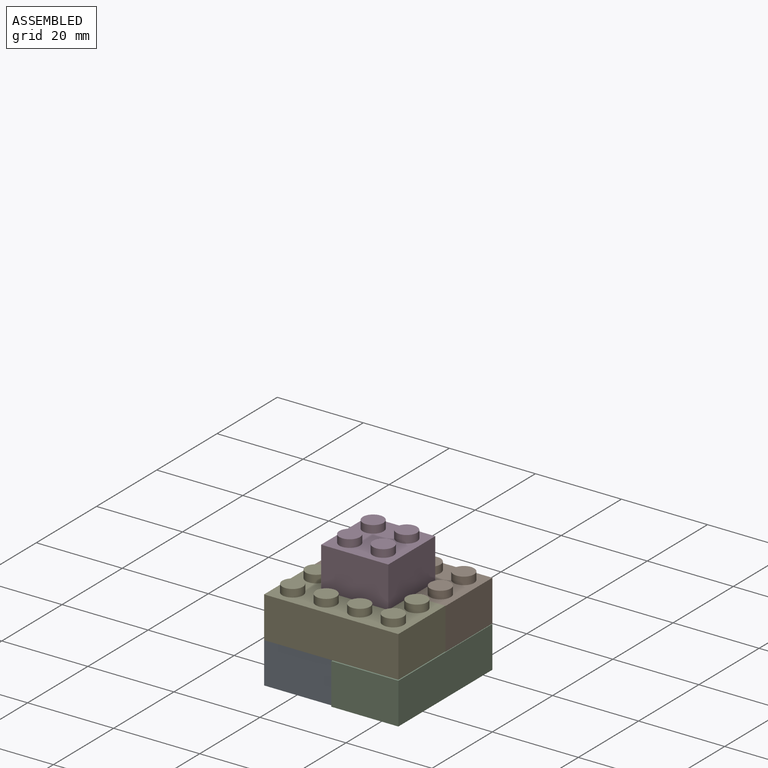
[diagram: assembled view]
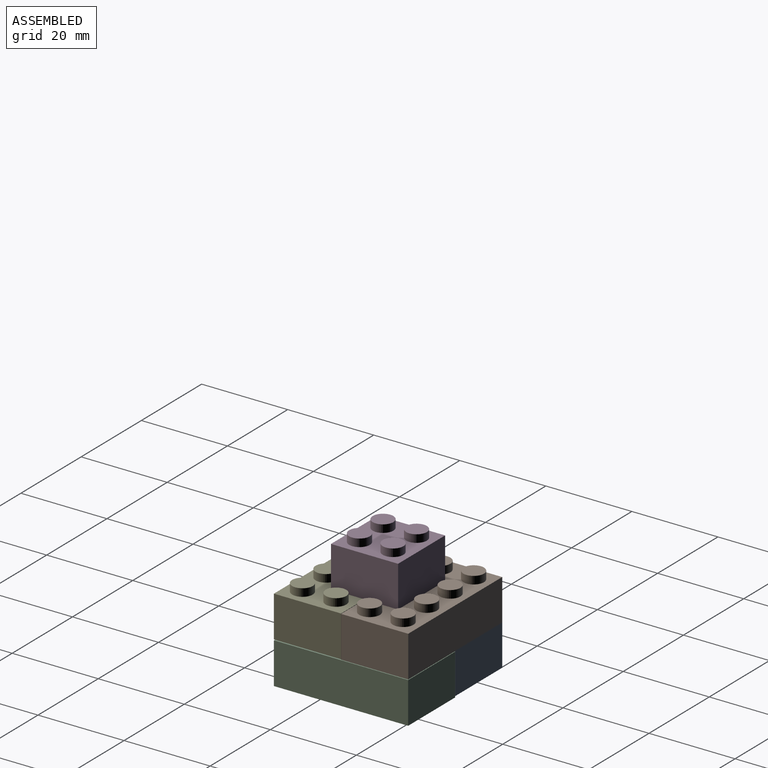
[diagram: assembled view, second angle]
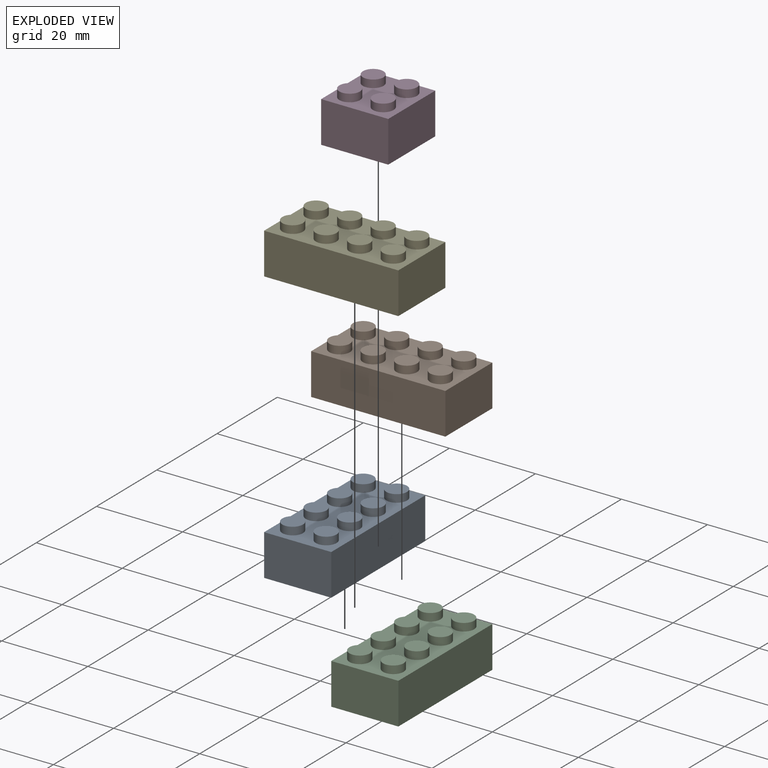
[diagram: exploded view]
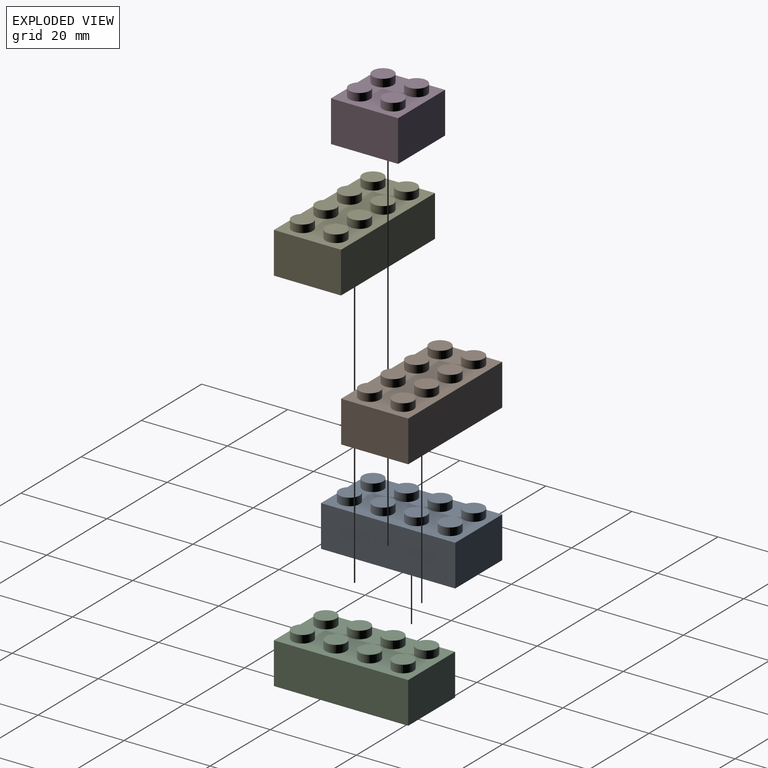
[diagram: exploded view, second angle]
ASSEMBLY  parts=5 mates=4
PART A: 55 faces, bbox 15.6x31.2x11.4 mm
  f0: cylinder r=1.4mm len=2.8mm, axis (0,0,1), area 7.9mm2, adj f18,f40
  f1: cylinder r=1.4mm len=2.8mm, axis (0,0,1), area 7.9mm2, adj f18,f37
  f2: cylinder r=1.4mm len=2.8mm, axis (0,0,1), area 7.9mm2, adj f18,f34
  f3: cylinder r=1.4mm len=2.8mm, axis (0,0,1), area 7.9mm2, adj f18,f31
  f4: cylinder r=1.4mm len=2.8mm, axis (0,0,1), area 7.9mm2, adj f18,f28
  f5: cylinder r=1.4mm len=2.8mm, axis (0,0,1), area 7.9mm2, adj f18,f25
  f6: cylinder r=1.4mm len=2.8mm, axis (0,0,1), area 7.9mm2, adj f18,f22
  f7: cylinder r=1.4mm len=2.8mm, axis (0,0,1), area 7.9mm2, adj f18,f19
  f8: plane 31.2x15.6mm, normal (0,0,-1), area 123.2mm2, adj f9,f10,f11,f12,f14,f15,f16,f17
  f9: plane 15.6x9.6mm, normal (0,1,0), area 149.8mm2, adj f8,f10,f12,f13
  f10: plane 31.2x9.6mm, normal (-1,0,0), area 299.5mm2, adj f8,f9,f11,f13
  f11: plane 15.6x9.6mm, normal (0,-1,0), area 149.8mm2, adj f8,f10,f12,f13
  f12: plane 31.2x9.6mm, normal (1,0,0), area 299.5mm2, adj f8,f9,f11,f13
  f13: plane 31.2x15.6mm, normal (0,0,1), area 342mm2, adj f9,f10,f11,f12,f20,f23,f26,f29
  f14: plane 12.8x8.2mm, normal (0,-1,0), area 105mm2, adj f8,f15,f17,f18
  f15: plane 28.4x8.2mm, normal (1,0,0), area 232.9mm2, adj f8,f14,f16,f18
  f16: plane 12.8x8.2mm, normal (0,1,0), area 105mm2, adj f8,f15,f17,f18
  f17: plane 28.4x8.2mm, normal (-1,0,0), area 232.9mm2, adj f8,f14,f16,f18
  f18: plane 28.4x12.8mm, normal (0,0,-1), area 229.4mm2, adj f0,f1,f2,f3,f4,f5,f6,f7
  f19: plane 2.8x2.8mm, normal (0,0,-1), area 6.2mm2, adj f7
  f20: cylinder r=2.4mm len=4.8mm, axis (0,0,-1), area 27.1mm2, adj f13,f21
  f21: plane 4.8x4.8mm, normal (0,0,1), area 18.1mm2, adj f20
  f22: plane 2.8x2.8mm, normal (0,0,-1), area 6.2mm2, adj f6
  f23: cylinder r=2.4mm len=4.8mm, axis (0,0,-1), area 27.1mm2, adj f13,f24
  f24: plane 4.8x4.8mm, normal (0,0,1), area 18.1mm2, adj f23
  f25: plane 2.8x2.8mm, normal (0,0,-1), area 6.2mm2, adj f5
  f26: cylinder r=2.4mm len=4.8mm, axis (0,0,-1), area 27.1mm2, adj f13,f27
  f27: plane 4.8x4.8mm, normal (0,0,1), area 18.1mm2, adj f26
  f28: plane 2.8x2.8mm, normal (0,0,-1), area 6.2mm2, adj f4
  f29: cylinder r=2.4mm len=4.8mm, axis (0,0,-1), area 27.1mm2, adj f13,f30
  f30: plane 4.8x4.8mm, normal (0,0,1), area 18.1mm2, adj f29
  f31: plane 2.8x2.8mm, normal (0,0,-1), area 6.2mm2, adj f3
  f32: cylinder r=2.4mm len=4.8mm, axis (0,0,-1), area 27.1mm2, adj f13,f33
  f33: plane 4.8x4.8mm, normal (0,0,1), area 18.1mm2, adj f32
  f34: plane 2.8x2.8mm, normal (0,0,-1), area 6.2mm2, adj f2
  f35: cylinder r=2.4mm len=4.8mm, axis (0,0,-1), area 27.1mm2, adj f13,f36
  f36: plane 4.8x4.8mm, normal (0,0,1), area 18.1mm2, adj f35
  f37: plane 2.8x2.8mm, normal (0,0,-1), area 6.2mm2, adj f1
  f38: cylinder r=2.4mm len=4.8mm, axis (0,0,-1), area 27.1mm2, adj f13,f39
  f39: plane 4.8x4.8mm, normal (0,0,1), area 18.1mm2, adj f38
  f40: plane 2.8x2.8mm, normal (0,0,-1), area 6.2mm2, adj f0
  f41: cylinder r=2.4mm len=4.8mm, axis (0,0,-1), area 27.1mm2, adj f13,f42
  f42: plane 4.8x4.8mm, normal (0,0,1), area 18.1mm2, adj f41
  f43: cylinder r=2.5mm len=8.2mm, axis (0,0,1), area 128.8mm2, adj f45,f46
  f44: cylinder r=3mm len=8.2mm, axis (0,0,1), area 154.6mm2, adj f18,f45
  f45: plane 6x6mm, normal (0,0,-1), area 8.6mm2, adj f43,f44
  f46: plane 5x5mm, normal (0,0,-1), area 19.6mm2, adj f43
  f47: cylinder r=2.5mm len=8.2mm, axis (0,0,1), area 128.8mm2, adj f49,f50
  f48: cylinder r=3mm len=8.2mm, axis (0,0,1), area 154.6mm2, adj f18,f49
  f49: plane 6x6mm, normal (0,0,-1), area 8.6mm2, adj f47,f48
  f50: plane 5x5mm, normal (0,0,-1), area 19.6mm2, adj f47
  f51: cylinder r=2.5mm len=8.2mm, axis (0,0,1), area 128.8mm2, adj f53,f54
  f52: cylinder r=3mm len=8.2mm, axis (0,0,1), area 154.6mm2, adj f18,f53
  f53: plane 6x6mm, normal (0,0,-1), area 8.6mm2, adj f51,f52
  f54: plane 5x5mm, normal (0,0,-1), area 19.6mm2, adj f51
PART B: 55 faces, bbox 15.6x31.2x11.4 mm
  f0: cylinder r=1.4mm len=2.8mm, axis (0,0,1), area 7.9mm2, adj f18,f40
  f1: cylinder r=1.4mm len=2.8mm, axis (0,0,1), area 7.9mm2, adj f18,f37
  f2: cylinder r=1.4mm len=2.8mm, axis (0,0,1), area 7.9mm2, adj f18,f34
  f3: cylinder r=1.4mm len=2.8mm, axis (0,0,1), area 7.9mm2, adj f18,f31
  f4: cylinder r=1.4mm len=2.8mm, axis (0,0,1), area 7.9mm2, adj f18,f28
  f5: cylinder r=1.4mm len=2.8mm, axis (0,0,1), area 7.9mm2, adj f18,f25
  f6: cylinder r=1.4mm len=2.8mm, axis (0,0,1), area 7.9mm2, adj f18,f22
  f7: cylinder r=1.4mm len=2.8mm, axis (0,0,1), area 7.9mm2, adj f18,f19
  f8: plane 31.2x15.6mm, normal (0,0,-1), area 123.2mm2, adj f9,f10,f11,f12,f14,f15,f16,f17
  f9: plane 15.6x9.6mm, normal (0,1,0), area 149.8mm2, adj f8,f10,f12,f13
  f10: plane 31.2x9.6mm, normal (-1,0,0), area 299.5mm2, adj f8,f9,f11,f13
  f11: plane 15.6x9.6mm, normal (0,-1,0), area 149.8mm2, adj f8,f10,f12,f13
  f12: plane 31.2x9.6mm, normal (1,0,0), area 299.5mm2, adj f8,f9,f11,f13
  f13: plane 31.2x15.6mm, normal (0,0,1), area 342mm2, adj f9,f10,f11,f12,f20,f23,f26,f29
  f14: plane 12.8x8.2mm, normal (0,-1,0), area 105mm2, adj f8,f15,f17,f18
  f15: plane 28.4x8.2mm, normal (1,0,0), area 232.9mm2, adj f8,f14,f16,f18
  f16: plane 12.8x8.2mm, normal (0,1,0), area 105mm2, adj f8,f15,f17,f18
  f17: plane 28.4x8.2mm, normal (-1,0,0), area 232.9mm2, adj f8,f14,f16,f18
  f18: plane 28.4x12.8mm, normal (0,0,-1), area 229.4mm2, adj f0,f1,f2,f3,f4,f5,f6,f7
  f19: plane 2.8x2.8mm, normal (0,0,-1), area 6.2mm2, adj f7
  f20: cylinder r=2.4mm len=4.8mm, axis (0,0,-1), area 27.1mm2, adj f13,f21
  f21: plane 4.8x4.8mm, normal (0,0,1), area 18.1mm2, adj f20
  f22: plane 2.8x2.8mm, normal (0,0,-1), area 6.2mm2, adj f6
  f23: cylinder r=2.4mm len=4.8mm, axis (0,0,-1), area 27.1mm2, adj f13,f24
  f24: plane 4.8x4.8mm, normal (0,0,1), area 18.1mm2, adj f23
  f25: plane 2.8x2.8mm, normal (0,0,-1), area 6.2mm2, adj f5
  f26: cylinder r=2.4mm len=4.8mm, axis (0,0,-1), area 27.1mm2, adj f13,f27
  f27: plane 4.8x4.8mm, normal (0,0,1), area 18.1mm2, adj f26
  f28: plane 2.8x2.8mm, normal (0,0,-1), area 6.2mm2, adj f4
  f29: cylinder r=2.4mm len=4.8mm, axis (0,0,-1), area 27.1mm2, adj f13,f30
  f30: plane 4.8x4.8mm, normal (0,0,1), area 18.1mm2, adj f29
  f31: plane 2.8x2.8mm, normal (0,0,-1), area 6.2mm2, adj f3
  f32: cylinder r=2.4mm len=4.8mm, axis (0,0,-1), area 27.1mm2, adj f13,f33
  f33: plane 4.8x4.8mm, normal (0,0,1), area 18.1mm2, adj f32
  f34: plane 2.8x2.8mm, normal (0,0,-1), area 6.2mm2, adj f2
  f35: cylinder r=2.4mm len=4.8mm, axis (0,0,-1), area 27.1mm2, adj f13,f36
  f36: plane 4.8x4.8mm, normal (0,0,1), area 18.1mm2, adj f35
  f37: plane 2.8x2.8mm, normal (0,0,-1), area 6.2mm2, adj f1
  f38: cylinder r=2.4mm len=4.8mm, axis (0,0,-1), area 27.1mm2, adj f13,f39
  f39: plane 4.8x4.8mm, normal (0,0,1), area 18.1mm2, adj f38
  f40: plane 2.8x2.8mm, normal (0,0,-1), area 6.2mm2, adj f0
  f41: cylinder r=2.4mm len=4.8mm, axis (0,0,-1), area 27.1mm2, adj f13,f42
  f42: plane 4.8x4.8mm, normal (0,0,1), area 18.1mm2, adj f41
  f43: cylinder r=2.5mm len=8.2mm, axis (0,0,1), area 128.8mm2, adj f45,f46
  f44: cylinder r=3mm len=8.2mm, axis (0,0,1), area 154.6mm2, adj f18,f45
  f45: plane 6x6mm, normal (0,0,-1), area 8.6mm2, adj f43,f44
  f46: plane 5x5mm, normal (0,0,-1), area 19.6mm2, adj f43
  f47: cylinder r=2.5mm len=8.2mm, axis (0,0,1), area 128.8mm2, adj f49,f50
  f48: cylinder r=3mm len=8.2mm, axis (0,0,1), area 154.6mm2, adj f18,f49
  f49: plane 6x6mm, normal (0,0,-1), area 8.6mm2, adj f47,f48
  f50: plane 5x5mm, normal (0,0,-1), area 19.6mm2, adj f47
  f51: cylinder r=2.5mm len=8.2mm, axis (0,0,1), area 128.8mm2, adj f53,f54
  f52: cylinder r=3mm len=8.2mm, axis (0,0,1), area 154.6mm2, adj f18,f53
  f53: plane 6x6mm, normal (0,0,-1), area 8.6mm2, adj f51,f52
  f54: plane 5x5mm, normal (0,0,-1), area 19.6mm2, adj f51
PART C: 55 faces, bbox 15.6x31.2x11.4 mm
  f0: cylinder r=1.4mm len=2.8mm, axis (0,0,1), area 7.9mm2, adj f18,f40
  f1: cylinder r=1.4mm len=2.8mm, axis (0,0,1), area 7.9mm2, adj f18,f37
  f2: cylinder r=1.4mm len=2.8mm, axis (0,0,1), area 7.9mm2, adj f18,f34
  f3: cylinder r=1.4mm len=2.8mm, axis (0,0,1), area 7.9mm2, adj f18,f31
  f4: cylinder r=1.4mm len=2.8mm, axis (0,0,1), area 7.9mm2, adj f18,f28
  f5: cylinder r=1.4mm len=2.8mm, axis (0,0,1), area 7.9mm2, adj f18,f25
  f6: cylinder r=1.4mm len=2.8mm, axis (0,0,1), area 7.9mm2, adj f18,f22
  f7: cylinder r=1.4mm len=2.8mm, axis (0,0,1), area 7.9mm2, adj f18,f19
  f8: plane 31.2x15.6mm, normal (0,0,-1), area 123.2mm2, adj f9,f10,f11,f12,f14,f15,f16,f17
  f9: plane 15.6x9.6mm, normal (0,1,0), area 149.8mm2, adj f8,f10,f12,f13
  f10: plane 31.2x9.6mm, normal (-1,0,0), area 299.5mm2, adj f8,f9,f11,f13
  f11: plane 15.6x9.6mm, normal (0,-1,0), area 149.8mm2, adj f8,f10,f12,f13
  f12: plane 31.2x9.6mm, normal (1,0,0), area 299.5mm2, adj f8,f9,f11,f13
  f13: plane 31.2x15.6mm, normal (0,0,1), area 342mm2, adj f9,f10,f11,f12,f20,f23,f26,f29
  f14: plane 12.8x8.2mm, normal (0,-1,0), area 105mm2, adj f8,f15,f17,f18
  f15: plane 28.4x8.2mm, normal (1,0,0), area 232.9mm2, adj f8,f14,f16,f18
  f16: plane 12.8x8.2mm, normal (0,1,0), area 105mm2, adj f8,f15,f17,f18
  f17: plane 28.4x8.2mm, normal (-1,0,0), area 232.9mm2, adj f8,f14,f16,f18
  f18: plane 28.4x12.8mm, normal (0,0,-1), area 229.4mm2, adj f0,f1,f2,f3,f4,f5,f6,f7
  f19: plane 2.8x2.8mm, normal (0,0,-1), area 6.2mm2, adj f7
  f20: cylinder r=2.4mm len=4.8mm, axis (0,0,-1), area 27.1mm2, adj f13,f21
  f21: plane 4.8x4.8mm, normal (0,0,1), area 18.1mm2, adj f20
  f22: plane 2.8x2.8mm, normal (0,0,-1), area 6.2mm2, adj f6
  f23: cylinder r=2.4mm len=4.8mm, axis (0,0,-1), area 27.1mm2, adj f13,f24
  f24: plane 4.8x4.8mm, normal (0,0,1), area 18.1mm2, adj f23
  f25: plane 2.8x2.8mm, normal (0,0,-1), area 6.2mm2, adj f5
  f26: cylinder r=2.4mm len=4.8mm, axis (0,0,-1), area 27.1mm2, adj f13,f27
  f27: plane 4.8x4.8mm, normal (0,0,1), area 18.1mm2, adj f26
  f28: plane 2.8x2.8mm, normal (0,0,-1), area 6.2mm2, adj f4
  f29: cylinder r=2.4mm len=4.8mm, axis (0,0,-1), area 27.1mm2, adj f13,f30
  f30: plane 4.8x4.8mm, normal (0,0,1), area 18.1mm2, adj f29
  f31: plane 2.8x2.8mm, normal (0,0,-1), area 6.2mm2, adj f3
  f32: cylinder r=2.4mm len=4.8mm, axis (0,0,-1), area 27.1mm2, adj f13,f33
  f33: plane 4.8x4.8mm, normal (0,0,1), area 18.1mm2, adj f32
  f34: plane 2.8x2.8mm, normal (0,0,-1), area 6.2mm2, adj f2
  f35: cylinder r=2.4mm len=4.8mm, axis (0,0,-1), area 27.1mm2, adj f13,f36
  f36: plane 4.8x4.8mm, normal (0,0,1), area 18.1mm2, adj f35
  f37: plane 2.8x2.8mm, normal (0,0,-1), area 6.2mm2, adj f1
  f38: cylinder r=2.4mm len=4.8mm, axis (0,0,-1), area 27.1mm2, adj f13,f39
  f39: plane 4.8x4.8mm, normal (0,0,1), area 18.1mm2, adj f38
  f40: plane 2.8x2.8mm, normal (0,0,-1), area 6.2mm2, adj f0
  f41: cylinder r=2.4mm len=4.8mm, axis (0,0,-1), area 27.1mm2, adj f13,f42
  f42: plane 4.8x4.8mm, normal (0,0,1), area 18.1mm2, adj f41
  f43: cylinder r=2.5mm len=8.2mm, axis (0,0,1), area 128.8mm2, adj f45,f46
  f44: cylinder r=3mm len=8.2mm, axis (0,0,1), area 154.6mm2, adj f18,f45
  f45: plane 6x6mm, normal (0,0,-1), area 8.6mm2, adj f43,f44
  f46: plane 5x5mm, normal (0,0,-1), area 19.6mm2, adj f43
  f47: cylinder r=2.5mm len=8.2mm, axis (0,0,1), area 128.8mm2, adj f49,f50
  f48: cylinder r=3mm len=8.2mm, axis (0,0,1), area 154.6mm2, adj f18,f49
  f49: plane 6x6mm, normal (0,0,-1), area 8.6mm2, adj f47,f48
  f50: plane 5x5mm, normal (0,0,-1), area 19.6mm2, adj f47
  f51: cylinder r=2.5mm len=8.2mm, axis (0,0,1), area 128.8mm2, adj f53,f54
  f52: cylinder r=3mm len=8.2mm, axis (0,0,1), area 154.6mm2, adj f18,f53
  f53: plane 6x6mm, normal (0,0,-1), area 8.6mm2, adj f51,f52
  f54: plane 5x5mm, normal (0,0,-1), area 19.6mm2, adj f51
PART D: 31 faces, bbox 15.6x15.6x11.4 mm
  f0: cylinder r=1.4mm len=2.8mm, axis (0,0,1), area 7.9mm2, adj f14,f24
  f1: cylinder r=1.4mm len=2.8mm, axis (0,0,1), area 7.9mm2, adj f14,f21
  f2: cylinder r=1.4mm len=2.8mm, axis (0,0,1), area 7.9mm2, adj f14,f18
  f3: cylinder r=1.4mm len=2.8mm, axis (0,0,1), area 7.9mm2, adj f14,f15
  f4: plane 15.6x15.6mm, normal (0,0,-1), area 79.5mm2, adj f5,f6,f7,f8,f10,f11,f12,f13
  f5: plane 15.6x9.6mm, normal (0,1,0), area 149.8mm2, adj f4,f6,f8,f9
  f6: plane 15.6x9.6mm, normal (-1,0,0), area 149.8mm2, adj f4,f5,f7,f9
  f7: plane 15.6x9.6mm, normal (0,-1,0), area 149.8mm2, adj f4,f6,f8,f9
  f8: plane 15.6x9.6mm, normal (1,0,0), area 149.8mm2, adj f4,f5,f7,f9
  f9: plane 15.6x15.6mm, normal (0,0,1), area 171mm2, adj f5,f6,f7,f8,f16,f19,f22,f25
  f10: plane 12.8x8.2mm, normal (0,-1,0), area 105mm2, adj f4,f11,f13,f14
  f11: plane 12.8x8.2mm, normal (1,0,0), area 105mm2, adj f4,f10,f12,f14
  f12: plane 12.8x8.2mm, normal (0,1,0), area 105mm2, adj f4,f11,f13,f14
  f13: plane 12.8x8.2mm, normal (-1,0,0), area 105mm2, adj f4,f10,f12,f14
  f14: plane 12.8x12.8mm, normal (0,0,-1), area 110.9mm2, adj f0,f1,f2,f3,f10,f11,f12,f13
  f15: plane 2.8x2.8mm, normal (0,0,-1), area 6.2mm2, adj f3
  f16: cylinder r=2.4mm len=4.8mm, axis (0,0,-1), area 27.1mm2, adj f9,f17
  f17: plane 4.8x4.8mm, normal (0,0,1), area 18.1mm2, adj f16
  f18: plane 2.8x2.8mm, normal (0,0,-1), area 6.2mm2, adj f2
  f19: cylinder r=2.4mm len=4.8mm, axis (0,0,-1), area 27.1mm2, adj f9,f20
  f20: plane 4.8x4.8mm, normal (0,0,1), area 18.1mm2, adj f19
  f21: plane 2.8x2.8mm, normal (0,0,-1), area 6.2mm2, adj f1
  f22: cylinder r=2.4mm len=4.8mm, axis (0,0,-1), area 27.1mm2, adj f9,f23
  f23: plane 4.8x4.8mm, normal (0,0,1), area 18.1mm2, adj f22
  f24: plane 2.8x2.8mm, normal (0,0,-1), area 6.2mm2, adj f0
  f25: cylinder r=2.4mm len=4.8mm, axis (0,0,-1), area 27.1mm2, adj f9,f26
  f26: plane 4.8x4.8mm, normal (0,0,1), area 18.1mm2, adj f25
  f27: cylinder r=2.5mm len=8.2mm, axis (0,0,1), area 128.8mm2, adj f29,f30
  f28: cylinder r=3mm len=8.2mm, axis (0,0,1), area 154.6mm2, adj f14,f29
  f29: plane 6x6mm, normal (0,0,-1), area 8.6mm2, adj f27,f28
  f30: plane 5x5mm, normal (0,0,-1), area 19.6mm2, adj f27
PART E: same geometry as B
PLACE A rot(axis=(-0.14,0.99,-0.04),0deg) t=(-16.24,-39.69,9.91)mm
PLACE B rot(axis=(0,0,1),90deg) t=(54.96,27.11,19.36)mm
PLACE C rot(axis=(-0.14,0.99,-0.04),0deg) t=(14.96,-39.7,9.63)mm
PLACE D t=(-24.44,-39.9,28.99)mm
PLACE E rot(axis=(0,0,1),90deg) t=(54.96,11.5,19.44)mm
MATE fastened C.f10 <-> A.f12  axis (-1,0,0) through (9.36,21.5,14.43)mm
MATE cylindrical E.f8 <-> C.f13  axis (0,0,1) through (24.96,-9.7,19.44)mm
MATE cylindrical B.f8 <-> A.f13  axis (0,0,1) through (-6.24,21.51,19.36)mm
MATE fastened E.f1 <-> D.f3  axis (0,0,1) through (5.46,2,30.84)mm
